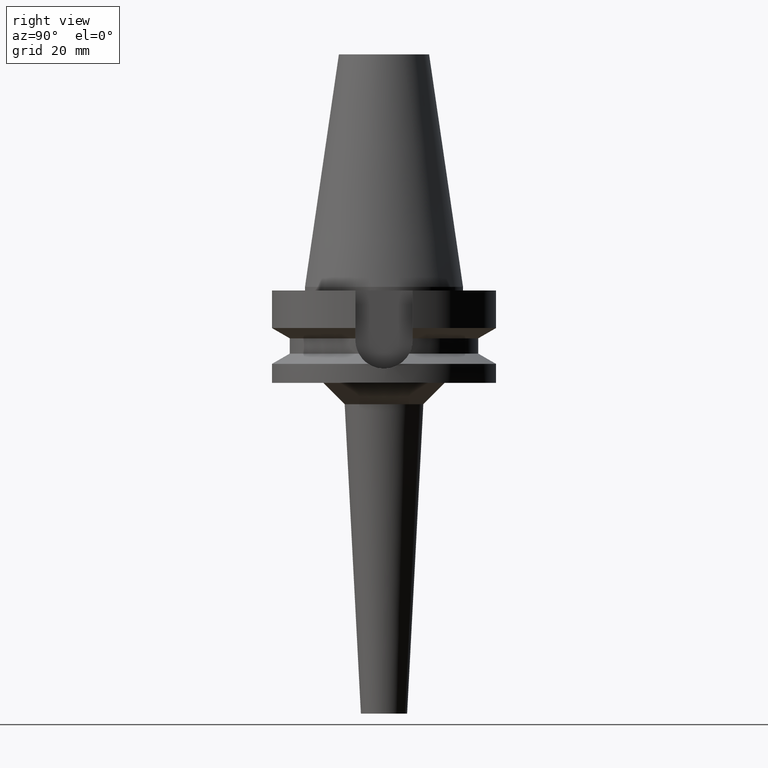
[diagram: clean part render]
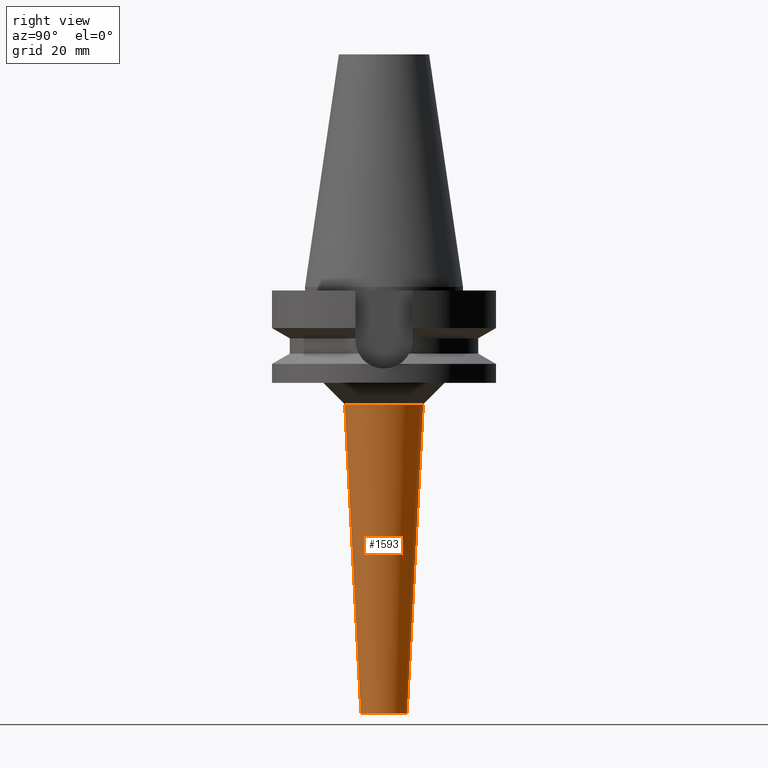
[diagram: same view with one face highlighted and labeled with its STEP entity id]
A machine part, right view. The second image highlights one B-rep face of the part: STEP entity #1593.
In plain terms, the highlighted conical surface has half-angle 3 deg.
Its self-contained STEP definition (entity closure, byte-faithful):
#681=DIRECTION('',(0.E0,-5.233595624292E-2,-9.986295347546E-1));
#682=VECTOR('',#681,8.711939410182E1);
#683=CARTESIAN_POINT('',(0.E0,1.105947679762E1,-3.3E1));
#684=LINE('',#683,#682);
#688=CARTESIAN_POINT('',(0.E0,0.E0,-3.3E1));
#689=DIRECTION('',(0.E0,0.E0,1.E0));
#690=DIRECTION('',(0.E0,-1.E0,0.E0));
#691=AXIS2_PLACEMENT_3D('',#688,#689,#690);
#696=DIRECTION('',(0.E0,5.233595624292E-2,-9.986295347546E-1));
#697=VECTOR('',#696,8.711939410182E1);
#698=CARTESIAN_POINT('',(0.E0,-1.105947679762E1,-3.3E1));
#699=LINE('',#698,#697);
#703=CARTESIAN_POINT('',(0.E0,0.E0,-1.2E2));
#704=DIRECTION('',(0.E0,0.E0,1.E0));
#705=DIRECTION('',(0.E0,-1.E0,0.E0));
#706=AXIS2_PLACEMENT_3D('',#703,#704,#705);
#1011=CARTESIAN_POINT('',(0.E0,-6.5E0,-1.2E2));
#1012=CARTESIAN_POINT('',(0.E0,6.5E0,-1.2E2));
#1013=VERTEX_POINT('',#1011);
#1014=VERTEX_POINT('',#1012);
#1015=CARTESIAN_POINT('',(0.E0,1.105947679762E1,-3.3E1));
#1016=VERTEX_POINT('',#1015);
#1017=CARTESIAN_POINT('',(0.E0,-1.105947679762E1,-3.3E1));
#1018=VERTEX_POINT('',#1017);
#1579=CARTESIAN_POINT('',(0.E0,0.E0,-7.65E1));
#1580=DIRECTION('',(0.E0,0.E0,1.E0));
#1581=DIRECTION('',(0.E0,1.E0,0.E0));
#1582=AXIS2_PLACEMENT_3D('',#1579,#1580,#1581);
#1583=CONICAL_SURFACE('',#1582,8.779738398812E0,3.E0);
#1585=ORIENTED_EDGE('',*,*,#1584,.T.);
#1587=ORIENTED_EDGE('',*,*,#1586,.F.);
#1589=ORIENTED_EDGE('',*,*,#1588,.F.);
#1590=ORIENTED_EDGE('',*,*,#1572,.T.);
#1591=EDGE_LOOP('',(#1585,#1587,#1589,#1590));
#1592=FACE_OUTER_BOUND('',#1591,.F.);
#692=CIRCLE('',#691,1.105947679762E1);
#707=CIRCLE('',#706,6.5E0);
#1572=EDGE_CURVE('',#1018,#1016,#692,.T.);
#1584=EDGE_CURVE('',#1016,#1014,#684,.T.);
#1586=EDGE_CURVE('',#1013,#1014,#707,.T.);
#1588=EDGE_CURVE('',#1018,#1013,#699,.T.);
#1593=ADVANCED_FACE('',(#1592),#1583,.T.);